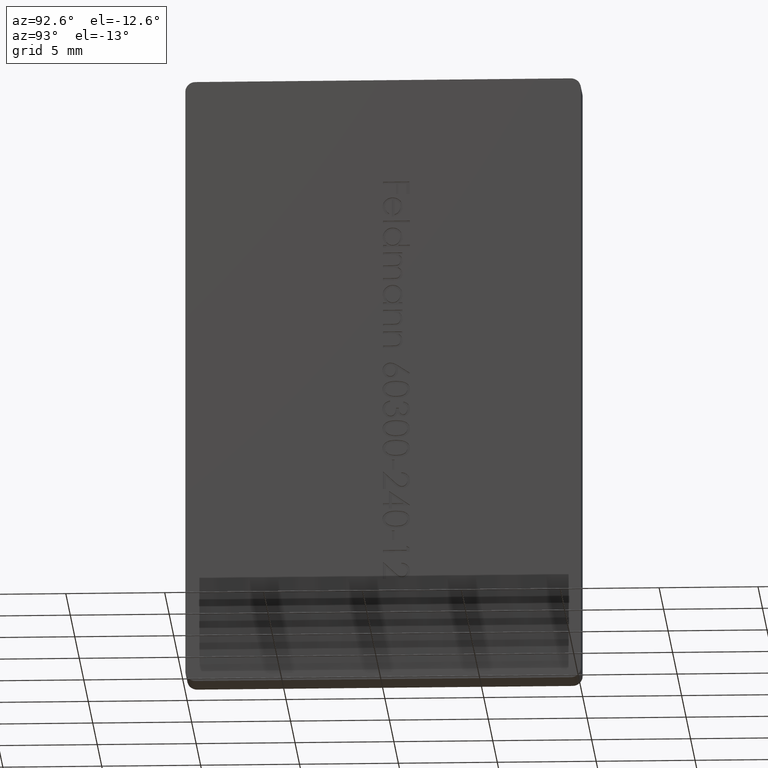
[diagram: clean part render]
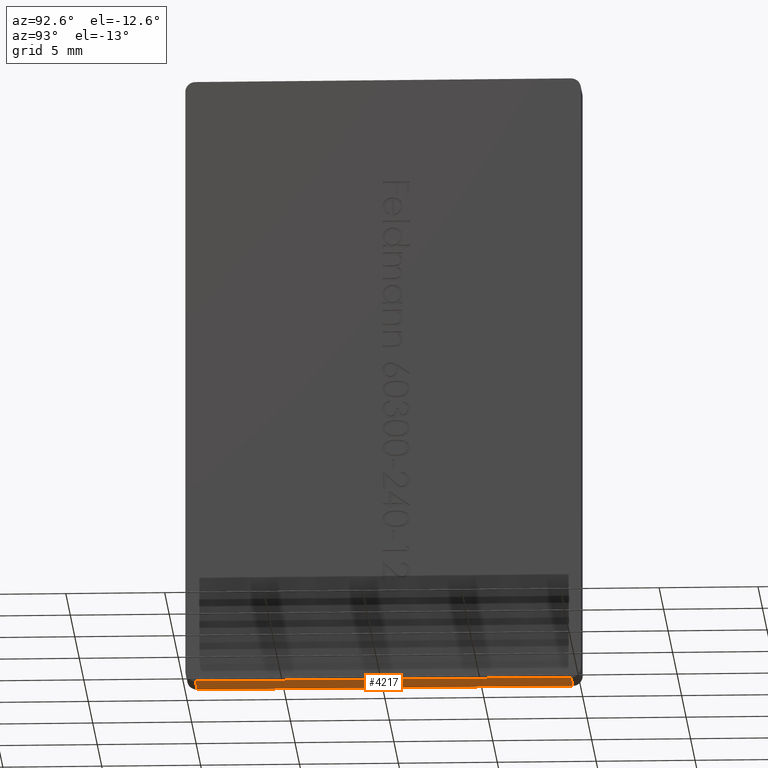
[diagram: same view with one face highlighted and labeled with its STEP entity id]
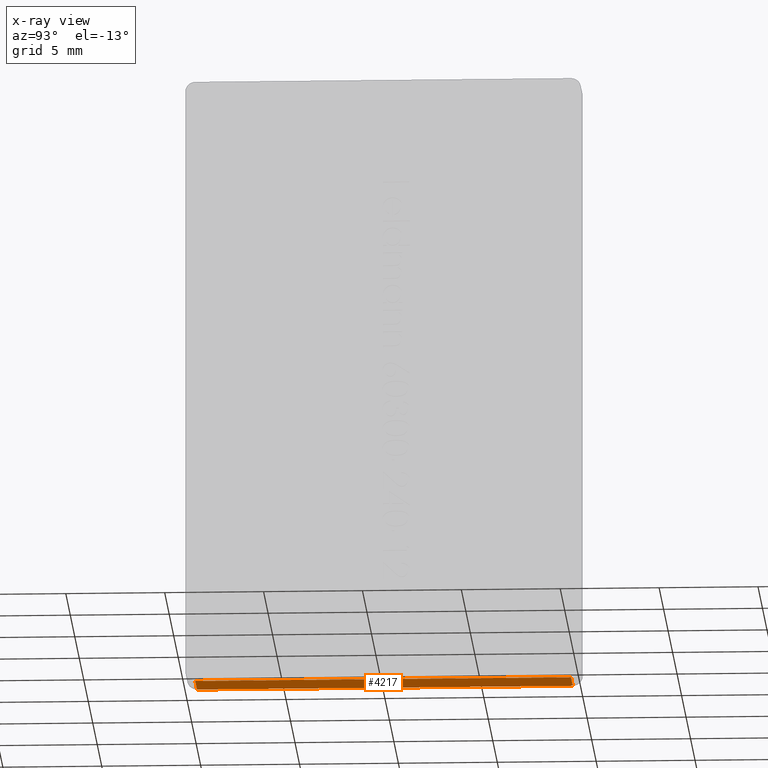
[diagram: x-ray of the same camera — body ghosted, the highlighted face saturated]
A machine part, auxiliary view. The second image highlights one B-rep face of the part: STEP entity #4217.
The next image is the same camera in x-ray: the body ghosted, the highlighted face saturated — about 0% of this face is hidden behind the body in this view.
In plain terms, the highlighted planar face has unit normal (0, 0, 1).
Its self-contained STEP definition (entity closure, byte-faithful):
#50 = LINE ( 'NONE', #14757, #8183 ) ;
#825 = VERTEX_POINT ( 'NONE', #3398 ) ;
#1965 = FACE_OUTER_BOUND ( 'NONE', #10139, .T. ) ;
#2090 = DIRECTION ( 'NONE',  ( 0.000000000000000000, 1.000000000000000000, 0.000000000000000000 ) ) ;
#2379 = LINE ( 'NONE', #5910, #9815 ) ;
#2441 = CARTESIAN_POINT ( 'NONE',  ( 2.000000000000000000, 19.49999999999999645, -31.00000000000000000 ) ) ;
#2831 = VECTOR ( 'NONE', #7100, 1000.000000000000000 ) ;
#3162 = CARTESIAN_POINT ( 'NONE',  ( 2.000000000000000000, 0.5000000000000035527, -31.00000000000000000 ) ) ;
#3398 = CARTESIAN_POINT ( 'NONE',  ( 2.000000000000000000, 0.5000000000000035527, -31.00000000000000000 ) ) ;
#3572 = VERTEX_POINT ( 'NONE', #13508 ) ;
#3739 = VERTEX_POINT ( 'NONE', #9151 ) ;
#4217 = ADVANCED_FACE ( 'NONE', ( #1965 ), #10109, .F. ) ;
#5278 = EDGE_CURVE ( 'NONE', #825, #10818, #7554, .T. ) ;
#5910 = CARTESIAN_POINT ( 'NONE',  ( 2.000000000000000000, 0.5000000000000035527, -31.00000000000000000 ) ) ;
#6552 = CARTESIAN_POINT ( 'NONE',  ( 0.000000000000000000, 0.5000000000000035527, -31.00000000000000000 ) ) ;
#6556 = DIRECTION ( 'NONE',  ( 1.000000000000000000, 0.000000000000000000, -0.000000000000000000 ) ) ;
#7029 = EDGE_CURVE ( 'NONE', #3572, #3739, #12956, .T. ) ;
#7100 = DIRECTION ( 'NONE',  ( -1.000000000000000000, -0.000000000000000000, -0.000000000000000000 ) ) ;
#7216 = ORIENTED_EDGE ( 'NONE', *, *, #5278, .T. ) ;
#7487 = CARTESIAN_POINT ( 'NONE',  ( 2.000000000000000000, 0.5000000000000035527, -31.00000000000000000 ) ) ;
#7554 = LINE ( 'NONE', #7487, #9183 ) ;
#8183 = VECTOR ( 'NONE', #2090, 1000.000000000000000 ) ;
#8376 = DIRECTION ( 'NONE',  ( 0.000000000000000000, 1.000000000000000000, 0.000000000000000000 ) ) ;
#8419 = ORIENTED_EDGE ( 'NONE', *, *, #7029, .F. ) ;
#9151 = CARTESIAN_POINT ( 'NONE',  ( 0.000000000000000000, 19.49999999999999645, -31.00000000000000000 ) ) ;
#9183 = VECTOR ( 'NONE', #9723, 1000.000000000000000 ) ;
#9609 = AXIS2_PLACEMENT_3D ( 'NONE', #3162, #13530, #6556 ) ;
#9723 = DIRECTION ( 'NONE',  ( -1.000000000000000000, -0.000000000000000000, -0.000000000000000000 ) ) ;
#9815 = VECTOR ( 'NONE', #8376, 1000.000000000000000 ) ;
#10059 = ORIENTED_EDGE ( 'NONE', *, *, #10955, .T. ) ;
#10109 = PLANE ( 'NONE',  #9609 ) ;
#10139 = EDGE_LOOP ( 'NONE', ( #10059, #8419, #10780, #7216 ) ) ;
#10780 = ORIENTED_EDGE ( 'NONE', *, *, #12244, .F. ) ;
#10818 = VERTEX_POINT ( 'NONE', #6552 ) ;
#10955 = EDGE_CURVE ( 'NONE', #10818, #3739, #50, .T. ) ;
#12244 = EDGE_CURVE ( 'NONE', #825, #3572, #2379, .T. ) ;
#12956 = LINE ( 'NONE', #2441, #2831 ) ;
#13508 = CARTESIAN_POINT ( 'NONE',  ( 2.000000000000000000, 19.49999999999999645, -31.00000000000000000 ) ) ;
#13530 = DIRECTION ( 'NONE',  ( 0.000000000000000000, 0.000000000000000000, 1.000000000000000000 ) ) ;
#14757 = CARTESIAN_POINT ( 'NONE',  ( 0.000000000000000000, 0.5000000000000035527, -31.00000000000000000 ) ) ;